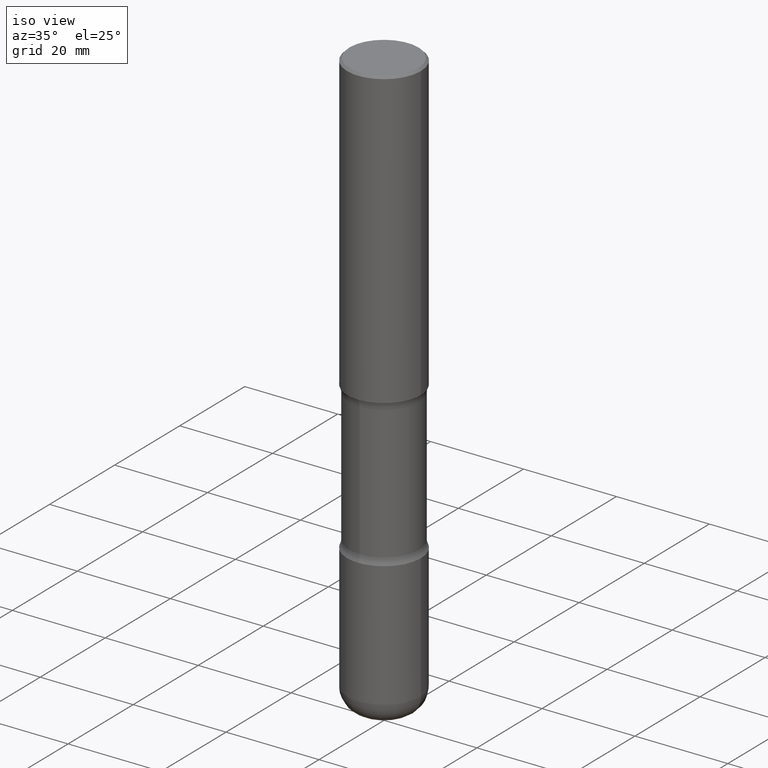
[diagram: clean part render]
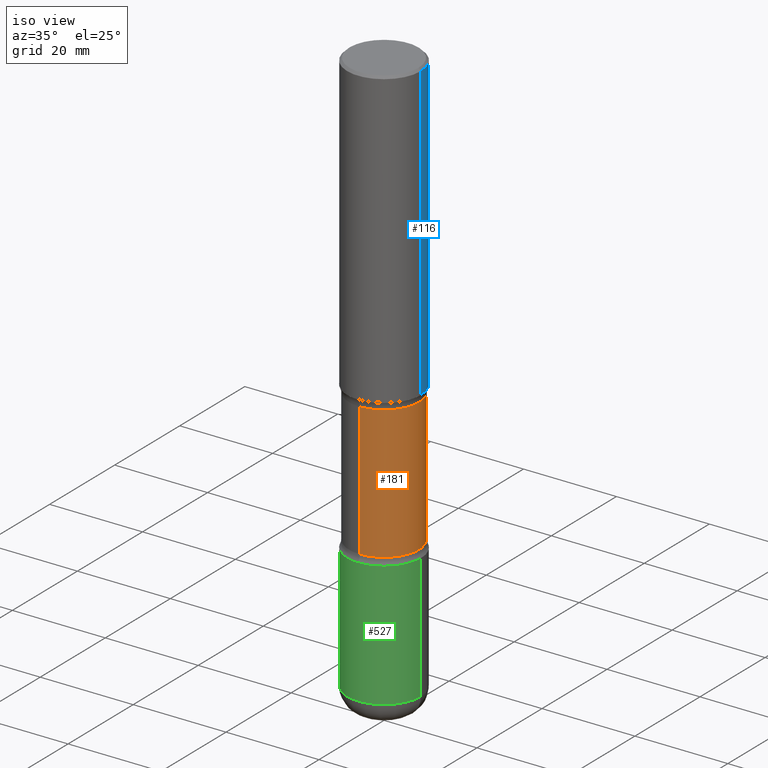
[diagram: same view with three faces highlighted in distinct colors, each labeled with its STEP entity id]
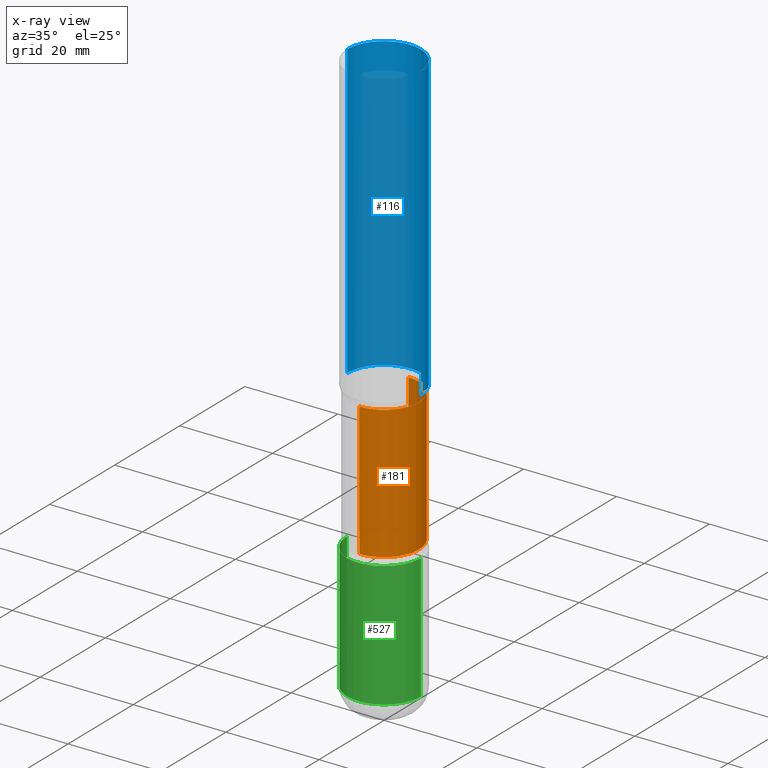
[diagram: x-ray of the same camera — body ghosted, the three highlighted faces saturated]
A machine part, iso view with three faces highlighted in distinct colors.
The next image is the same camera in x-ray (body ghosted, the three faces saturated) — at least one of them is partly hidden behind the body in this view.
Their STEP definitions:

[orange] entity #181 — the highlighted cylindrical surface (partial cylindrical patch) has radius 7.5406 mm, axis along (0, -0, -1).
#12 = CARTESIAN_POINT ( 'NONE',  ( 2.073067044938200360E-15, 0.2968749999999871214, -3.689484635215509289 ) ) ;
#14 = CARTESIAN_POINT ( 'NONE',  ( 2.073067044938233492E-15, 0.2968749999999827360, -5.000000000000000888 ) ) ;
#33 = VERTEX_POINT ( 'NONE', #477 ) ;
#35 = CARTESIAN_POINT ( 'NONE',  ( 6.171273093058203090E-29, -9.069431456984199816E-15, -2.560515364784490711 ) ) ;
#44 = CARTESIAN_POINT ( 'NONE',  ( -2.090307983695953569E-15, -0.2968750000000091038, -2.560515364784489822 ) ) ;
#46 = EDGE_CURVE ( 'NONE', #215, #33, #297, .T. ) ;
#60 = CIRCLE ( 'NONE', #475, 0.2968750000000000000 ) ;
#67 = CARTESIAN_POINT ( 'NONE',  ( -2.036710343088299976E-15, -0.2968750000000173195, -4.999999999999999112 ) ) ;
#76 = CYLINDRICAL_SURFACE ( 'NONE', #178, 0.2968750000000000000 ) ;
#78 = ORIENTED_EDGE ( 'NONE', *, *, #46, .T. ) ;
#112 = DIRECTION ( 'NONE',  ( 2.521457479434076939E-29, -3.382661233743974681E-15, -1.000000000000000000 ) ) ;
#119 = VECTOR ( 'NONE', #112, 39.37007874015748143 ) ;
#135 = DIRECTION ( 'NONE',  ( 6.982962677686266711E-15, 1.000000000000000000, -3.680805717779217644E-15 ) ) ;
#136 = DIRECTION ( 'NONE',  ( 2.521457479434076939E-29, -3.382661233743975076E-15, -1.000000000000000000 ) ) ;
#151 = CARTESIAN_POINT ( 'NONE',  ( 1.232232987248685960E-28, -1.732138156284176685E-14, -5.000000000000000000 ) ) ;
#175 = DIRECTION ( 'NONE',  ( 2.521457479434076939E-29, -3.382661233743975076E-15, -1.000000000000000000 ) ) ;
#178 = AXIS2_PLACEMENT_3D ( 'NONE', #151, #136, #353 ) ;
#181 = ADVANCED_FACE ( 'NONE', ( #300 ), #76, .T. ) ;
#188 = VECTOR ( 'NONE', #489, 39.37007874015748143 ) ;
#190 = DIRECTION ( 'NONE',  ( 6.982962677686265133E-15, 1.000000000000000000, -3.680805717779217644E-15 ) ) ;
#197 = ORIENTED_EDGE ( 'NONE', *, *, #445, .F. ) ;
#202 = EDGE_CURVE ( 'NONE', #550, #215, #303, .T. ) ;
#215 = VERTEX_POINT ( 'NONE', #44 ) ;
#231 = DIRECTION ( 'NONE',  ( 2.521457479434076939E-29, -3.382661233743975076E-15, -1.000000000000000000 ) ) ;
#296 = ORIENTED_EDGE ( 'NONE', *, *, #202, .T. ) ;
#297 = LINE ( 'NONE', #67, #119 ) ;
#300 = FACE_OUTER_BOUND ( 'NONE', #431, .T. ) ;
#303 = CIRCLE ( 'NONE', #474, 0.2968750000000000000 ) ;
#347 = ORIENTED_EDGE ( 'NONE', *, *, #430, .F. ) ;
#353 = DIRECTION ( 'NONE',  ( 6.982962677686266711E-15, 1.000000000000000000, -3.680805717779217644E-15 ) ) ;
#430 = EDGE_CURVE ( 'NONE', #457, #33, #60, .T. ) ;
#431 = EDGE_LOOP ( 'NONE', ( #296, #78, #347, #197 ) ) ;
#445 = EDGE_CURVE ( 'NONE', #550, #457, #497, .T. ) ;
#446 = CARTESIAN_POINT ( 'NONE',  ( 9.017921104037724021E-29, -1.288835204215942242E-14, -3.689484635215508401 ) ) ;
#457 = VERTEX_POINT ( 'NONE', #12 ) ;
#474 = AXIS2_PLACEMENT_3D ( 'NONE', #35, #175, #135 ) ;
#475 = AXIS2_PLACEMENT_3D ( 'NONE', #446, #231, #190 ) ;
#477 = CARTESIAN_POINT ( 'NONE',  ( -2.090307983695922804E-15, -0.2968750000000128786, -3.689484635215507069 ) ) ;
#489 = DIRECTION ( 'NONE',  ( 2.521457479434076939E-29, -3.382661233743974681E-15, -1.000000000000000000 ) ) ;
#497 = LINE ( 'NONE', #14, #188 ) ;
#521 = CARTESIAN_POINT ( 'NONE',  ( 2.073067044938171961E-15, 0.2968749999999909517, -2.560515364784492043 ) ) ;
#550 = VERTEX_POINT ( 'NONE', #521 ) ;

[blue] entity #116 — the highlighted cylindrical surface (partial cylindrical patch) has radius 7.9375 mm, axis along (-0, 0, 1).
#8 = CARTESIAN_POINT ( 'NONE',  ( 0.3125000000000002220, -1.091087918388482329E-14, -2.499999999999999556 ) ) ;
#28 = ORIENTED_EDGE ( 'NONE', *, *, #488, .F. ) ;
#52 = FACE_OUTER_BOUND ( 'NONE', #87, .T. ) ;
#61 = VECTOR ( 'NONE', #289, 39.37007874015748143 ) ;
#75 = LINE ( 'NONE', #559, #525 ) ;
#87 = EDGE_LOOP ( 'NONE', ( #195, #133, #520, #28 ) ) ;
#99 = VERTEX_POINT ( 'NONE', #354 ) ;
#104 = DIRECTION ( 'NONE',  ( -2.445468806185136597E-29, 3.491481338843145583E-15, 1.000000000000000000 ) ) ;
#108 = EDGE_CURVE ( 'NONE', #345, #99, #75, .T. ) ;
#114 = LINE ( 'NONE', #125, #61 ) ;
#116 = ADVANCED_FACE ( 'NONE', ( #52 ), #141, .T. ) ;
#125 = CARTESIAN_POINT ( 'NONE',  ( 0.3125000000000000000, -2.182175836776958347E-15, 1.523805242436230075E-29 ) ) ;
#133 = ORIENTED_EDGE ( 'NONE', *, *, #108, .T. ) ;
#139 = AXIS2_PLACEMENT_3D ( 'NONE', #515, #104, #185 ) ;
#141 = CYLINDRICAL_SURFACE ( 'NONE', #139, 0.3125000000000000000 ) ;
#146 = DIRECTION ( 'NONE',  ( 1.000000000000000000, -6.982962677686266711E-15, 0.000000000000000000 ) ) ;
#165 = VERTEX_POINT ( 'NONE', #260 ) ;
#173 = AXIS2_PLACEMENT_3D ( 'NONE', #370, #328, #331 ) ;
#185 = DIRECTION ( 'NONE',  ( 1.000000000000000000, -6.982962677686266711E-15, 4.876176775795936353E-29 ) ) ;
#186 = CARTESIAN_POINT ( 'NONE',  ( 4.890937612370289799E-31, -6.982962677686315028E-17, -0.02000000000000006981 ) ) ;
#195 = ORIENTED_EDGE ( 'NONE', *, *, #523, .T. ) ;
#207 = CIRCLE ( 'NONE', #227, 0.3124999999999998890 ) ;
#227 = AXIS2_PLACEMENT_3D ( 'NONE', #186, #412, #146 ) ;
#260 = CARTESIAN_POINT ( 'NONE',  ( 0.3124999999999998890, -2.213735251080466123E-15, -0.02000000000000006981 ) ) ;
#289 = DIRECTION ( 'NONE',  ( -2.445468806185136877E-29, 3.491481338843145188E-15, 1.000000000000000000 ) ) ;
#305 = CIRCLE ( 'NONE', #173, 0.3125000000000002220 ) ;
#328 = DIRECTION ( 'NONE',  ( -2.445468806185136597E-29, 3.491481338843145583E-15, 1.000000000000000000 ) ) ;
#331 = DIRECTION ( 'NONE',  ( 1.000000000000000000, -6.982962677686266711E-15, 0.000000000000000000 ) ) ;
#341 = CARTESIAN_POINT ( 'NONE',  ( -0.3125000000000002220, -2.178820437692046306E-15, -2.499999999999999556 ) ) ;
#345 = VERTEX_POINT ( 'NONE', #341 ) ;
#354 = CARTESIAN_POINT ( 'NONE',  ( -0.3124999999999998890, 2.112346210000094260E-15, -0.02000000000000006981 ) ) ;
#370 = CARTESIAN_POINT ( 'NONE',  ( 6.113672015462840371E-29, -8.728703347107863365E-15, -2.499999999999999556 ) ) ;
#394 = EDGE_CURVE ( 'NONE', #165, #99, #207, .T. ) ;
#412 = DIRECTION ( 'NONE',  ( -2.445468806185136597E-29, 3.491481338843145583E-15, 1.000000000000000000 ) ) ;
#442 = DIRECTION ( 'NONE',  ( -2.445468806185136877E-29, 3.491481338843145188E-15, 1.000000000000000000 ) ) ;
#488 = EDGE_CURVE ( 'NONE', #539, #165, #114, .T. ) ;
#515 = CARTESIAN_POINT ( 'NONE',  ( 0.000000000000000000, 0.000000000000000000, 0.000000000000000000 ) ) ;
#520 = ORIENTED_EDGE ( 'NONE', *, *, #394, .F. ) ;
#523 = EDGE_CURVE ( 'NONE', #539, #345, #305, .T. ) ;
#525 = VECTOR ( 'NONE', #442, 39.37007874015748143 ) ;
#539 = VERTEX_POINT ( 'NONE', #8 ) ;
#559 = CARTESIAN_POINT ( 'NONE',  ( -0.3125000000000000000, 2.220446049250313081E-15, -1.537167215704658232E-29 ) ) ;

[green] entity #527 — the highlighted cylindrical surface (partial cylindrical patch) has radius 7.9375 mm, axis along (-0, 0, 1).
#39 = EDGE_CURVE ( 'NONE', #102, #417, #456, .T. ) ;
#64 = EDGE_CURVE ( 'NONE', #102, #238, #106, .T. ) ;
#82 = CYLINDRICAL_SURFACE ( 'NONE', #428, 0.3125000000000001665 ) ;
#85 = DIRECTION ( 'NONE',  ( 1.000000000000000000, -6.982962677686265133E-15, 0.000000000000000000 ) ) ;
#92 = EDGE_CURVE ( 'NONE', #417, #487, #359, .T. ) ;
#102 = VERTEX_POINT ( 'NONE', #517 ) ;
#106 = CIRCLE ( 'NONE', #455, 0.3125000000000002220 ) ;
#107 = AXIS2_PLACEMENT_3D ( 'NONE', #191, #389, #85 ) ;
#111 = LINE ( 'NONE', #363, #544 ) ;
#191 = CARTESIAN_POINT ( 'NONE',  ( 9.170508023194261117E-29, -1.309305502066179584E-14, -3.749999999999999556 ) ) ;
#238 = VERTEX_POINT ( 'NONE', #311 ) ;
#240 = DIRECTION ( 'NONE',  ( -2.445468806185136597E-29, 3.491481338843145583E-15, 1.000000000000000000 ) ) ;
#255 = ORIENTED_EDGE ( 'NONE', *, *, #413, .T. ) ;
#277 = DIRECTION ( 'NONE',  ( -2.445468806185136877E-29, 3.491481338843145188E-15, 1.000000000000000000 ) ) ;
#291 = CARTESIAN_POINT ( 'NONE',  ( 1.176270495775050811E-28, -1.679402523983553013E-14, -4.810000000000000497 ) ) ;
#311 = CARTESIAN_POINT ( 'NONE',  ( 0.3125000000000001665, -1.897620107661249005E-14, -4.810000000000000497 ) ) ;
#325 = CARTESIAN_POINT ( 'NONE',  ( -0.3125000000000001665, 2.220446049250314264E-15, -1.537167215704658792E-29 ) ) ;
#342 = DIRECTION ( 'NONE',  ( 1.000000000000000000, -6.982962677686264344E-15, 0.000000000000000000 ) ) ;
#348 = FACE_OUTER_BOUND ( 'NONE', #552, .T. ) ;
#349 = CARTESIAN_POINT ( 'NONE',  ( 0.3125000000000001665, -1.527523085743875418E-14, -3.749999999999999556 ) ) ;
#359 = CIRCLE ( 'NONE', #107, 0.3125000000000001665 ) ;
#363 = CARTESIAN_POINT ( 'NONE',  ( 0.3125000000000001665, -2.182175836776959530E-15, 1.523805242436230636E-29 ) ) ;
#389 = DIRECTION ( 'NONE',  ( -2.445468806185136597E-29, 3.491481338843145583E-15, 1.000000000000000000 ) ) ;
#393 = CARTESIAN_POINT ( 'NONE',  ( 0.000000000000000000, 0.000000000000000000, 0.000000000000000000 ) ) ;
#413 = EDGE_CURVE ( 'NONE', #238, #487, #111, .T. ) ;
#417 = VERTEX_POINT ( 'NONE', #533 ) ;
#427 = VECTOR ( 'NONE', #494, 39.37007874015748143 ) ;
#428 = AXIS2_PLACEMENT_3D ( 'NONE', #393, #432, #548 ) ;
#432 = DIRECTION ( 'NONE',  ( -2.445468806185136597E-29, 3.491481338843145583E-15, 1.000000000000000000 ) ) ;
#455 = AXIS2_PLACEMENT_3D ( 'NONE', #291, #240, #342 ) ;
#456 = LINE ( 'NONE', #325, #427 ) ;
#461 = ORIENTED_EDGE ( 'NONE', *, *, #92, .F. ) ;
#465 = ORIENTED_EDGE ( 'NONE', *, *, #64, .T. ) ;
#487 = VERTEX_POINT ( 'NONE', #349 ) ;
#494 = DIRECTION ( 'NONE',  ( -2.445468806185136877E-29, 3.491481338843145188E-15, 1.000000000000000000 ) ) ;
#513 = ORIENTED_EDGE ( 'NONE', *, *, #39, .F. ) ;
#517 = CARTESIAN_POINT ( 'NONE',  ( -0.3125000000000001665, -1.457357919058521389E-14, -4.810000000000000497 ) ) ;
#527 = ADVANCED_FACE ( 'NONE', ( #348 ), #82, .T. ) ;
#533 = CARTESIAN_POINT ( 'NONE',  ( -0.3125000000000001665, -1.272309408099834754E-14, -3.749999999999999556 ) ) ;
#544 = VECTOR ( 'NONE', #277, 39.37007874015748143 ) ;
#548 = DIRECTION ( 'NONE',  ( 1.000000000000000000, -6.982962677686266711E-15, 4.876176775795935232E-29 ) ) ;
#552 = EDGE_LOOP ( 'NONE', ( #513, #465, #255, #461 ) ) ;